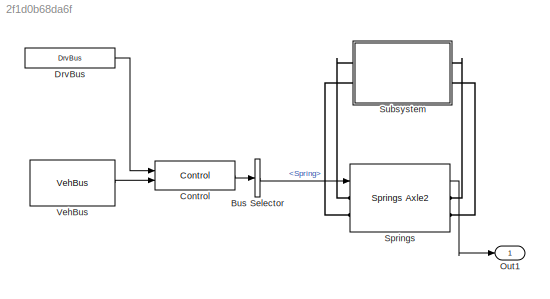
MODEL slx_2f1d0b68da6f
KIND model
CONFIG AbsTol = auto
CONFIG EnableMultiTasking = off
CONFIG FixedStep = auto
CONFIG MaxStep = auto
CONFIG MinStep = auto
CONFIG RelTol = 1e-3
CONFIG SampleTimeConstraint = Unconstrained
CONFIG SolverName = VariableStepAuto
CONFIG StartTime = 0.0
CONFIG StopTime = 10.0
BLOCK [BusSelector] Bus Selector
  OutputSignals = Chassis.Spring
  Ports = [1, 1]
BLOCK [Reference] Control  REF=sm_car_lib/Control/Control  (lib defined in slx_05426f0848b6, slx_5dc2867fb1c9)
  AttributesFormatString = %<popup_brake_control>
  Ports = [2, 1]
  SourceBlock = sm_car_lib/Control/Control
BLOCK [Reference] DrvBus  REF=sm_car_lib/Inputs/DrvBus  (lib defined in slx_05426f0848b6, slx_5dc2867fb1c9)
  Ports = [0, 1]
  SourceBlock = sm_car_lib/Inputs/DrvBus
  SourceType = SubSystem
BLOCK [Outport] Out1
  AttributesFormatString = %<OutDataTypeStr>
  OutDataTypeStr = Bus: VehicleChassisSpringBusDef
  VectorParamsAs1DForOutWhenUnconnected = off
BLOCK [Reference] Springs  REF=Springs_Axle2/Springs Axle2
  AttributesFormatString = %<ActiveVariant>
  Ports = [1, 1, 0, 0, 0, 2, 2]
  SourceBlock = Springs_Axle2/Springs Axle2
  SourceType = Variants for Springs
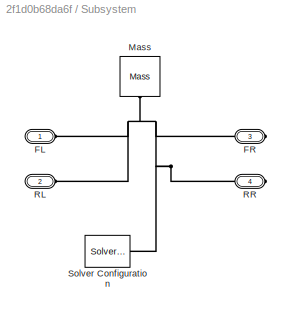
BLOCK [SubSystem] Subsystem
  Ports = [0, 0, 0, 0, 0, 2, 2]
  RequestExecContextInheritance = off
BLOCK [PMIOPort] Subsystem/FL
  Side = Left
BLOCK [PMIOPort] Subsystem/FR
  Port = 3
  Side = Right
BLOCK [Reference] Subsystem/Mass  REF=fl_lib/Mechanical/Translational
Elements/Mass
  NameLocation = left
  Ports = [0, 0, 0, 0, 0, 1]
  SourceBlock = fl_lib/Mechanical/Translational\nElements/Mass
  SourceProductBaseCode = PW,SS,VE
  SourceType = Mass
BLOCK [PMIOPort] Subsystem/RL
  Port = 2
  Side = Left
BLOCK [PMIOPort] Subsystem/RR
  Port = 4
  Side = Right
BLOCK [Reference] Subsystem/Solver Configuration  REF=nesl_utility/Solver
Configuration
  Ports = [0, 0, 0, 0, 0, 0, 1]
  SourceBlock = nesl_utility/Solver\nConfiguration
  SourceProductBaseCode = SS,PW,VE
  SourceType = Solver\nConfiguration
BLOCK [Reference] VehBus  REF=sm_car_lib/Outputs/VehBus  (lib defined in slx_05426f0848b6, slx_5dc2867fb1c9)
  Ports = [0, 1]
  SourceBlock = sm_car_lib/Outputs/VehBus
  SourceType = SubSystem
LINE Bus Selector:1 -> Springs:1
LINE Control:1 -> Bus Selector:1
LINE DrvBus:1 -> Control:1
LINE Springs:1 -> Out1:1
LINE VehBus:1 -> Control:2
PLINE Springs:LConn1 -- Subsystem:LConn1
PLINE Springs:LConn2 -- Subsystem:LConn2
PLINE Springs:RConn1 -- Subsystem:RConn1
PLINE Springs:RConn2 -- Subsystem:RConn2
PNET net1: Subsystem/FL:RConn1 -- Subsystem/FR:RConn1 -- Subsystem/Mass:LConn1 -- Subsystem/RL:RConn1 -- Subsystem/RR:RConn1 -- Subsystem/Solver Configuration:RConn1
note: PNET lines group multi-terminal physical nets as a canonical sorted terminal list (undirected conserving connections); 2-terminal nets keep the pairwise PLINE form
